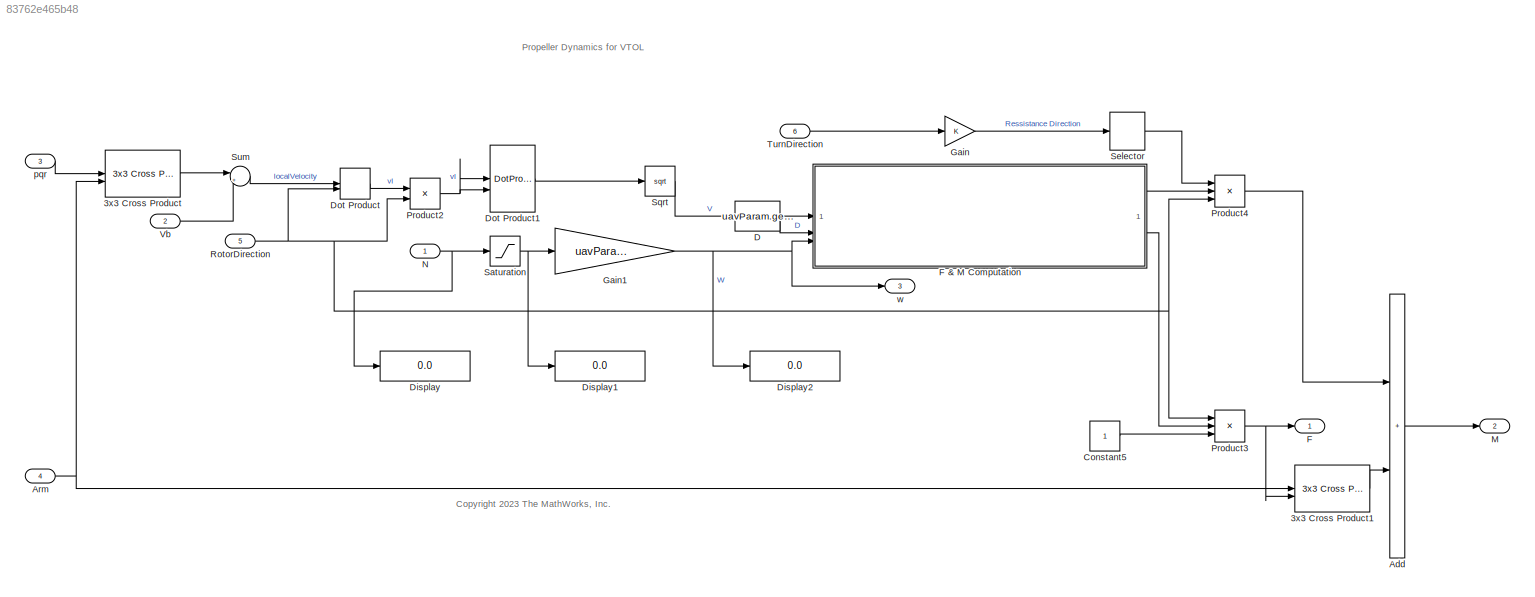
MODEL slx_83762e465b48
KIND model
BLOCK [Reference] 3x3 Cross Product  REF=sharedutil/3x3 Cross Product
  SourceBlock = sharedutil/3x3 Cross Product
  SourceType = CrossProduct
BLOCK [Reference] 3x3 Cross Product1  REF=sharedutil/3x3 Cross Product
  SourceBlock = sharedutil/3x3 Cross Product
  SourceType = CrossProduct
BLOCK [Sum] Add
  IconShape = rectangular
BLOCK [Inport] Arm
  Port = 4
  PortDimensions = [3 1]
BLOCK [Constant] Constant5
BLOCK [Constant] D
  Value = uavParam.geom.PropDiameter
BLOCK [Display] Display
  Decimation = 1
BLOCK [Display] Display1
  Decimation = 1
BLOCK [Display] Display2
  Decimation = 1
BLOCK [DotProduct] Dot Product
  OutDataTypeStr = Inherit: Inherit via internal rule
BLOCK [DotProduct] Dot Product1
  OutDataTypeStr = Inherit: Inherit via internal rule
BLOCK [Outport] F
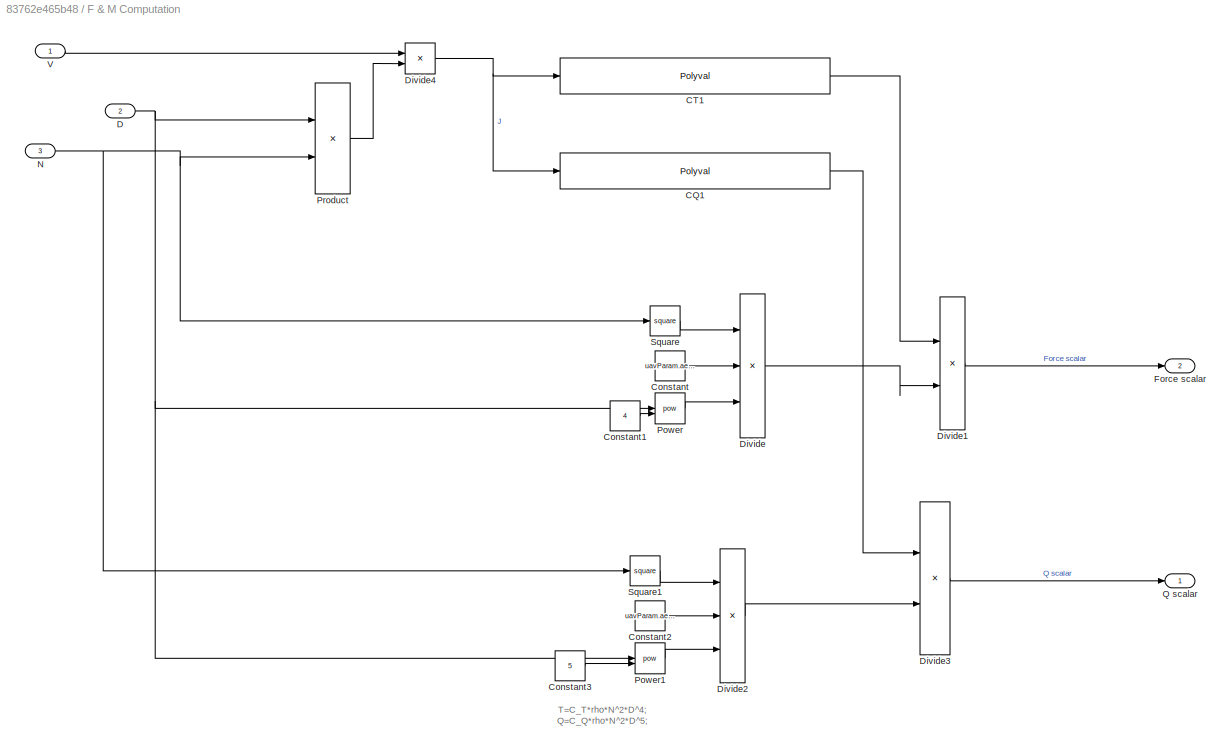
BLOCK [SubSystem] F & M Computation
BLOCK [Polyval] F & M Computation/CQ1
  Coefs = [0.04280,-0.05046,0.005711,-0.003293, 0.007048]
BLOCK [Polyval] F & M Computation/CT1
  Coefs = [0.03338, -0.1265,-0.1210,0.1142]
BLOCK [Constant] F & M Computation/Constant
  Value = uavParam.aero.rho
BLOCK [Constant] F & M Computation/Constant1
  Value = 4
BLOCK [Constant] F & M Computation/Constant2
  Value = uavParam.aero.rho
BLOCK [Constant] F & M Computation/Constant3
  Value = 5
BLOCK [Inport] F & M Computation/D
  Port = 2
BLOCK [Product] F & M Computation/Divide
  Inputs = ***
BLOCK [Product] F & M Computation/Divide1
  Inputs = **
BLOCK [Product] F & M Computation/Divide2
  Inputs = ***
BLOCK [Product] F & M Computation/Divide3
  Inputs = **
BLOCK [Product] F & M Computation/Divide4
  Inputs = */
BLOCK [Outport] F & M Computation/Force scalar
  Port = 2
BLOCK [Inport] F & M Computation/N
  Port = 3
BLOCK [Math] F & M Computation/Power
  Operator = pow
BLOCK [Math] F & M Computation/Power1
  Operator = pow
BLOCK [Product] F & M Computation/Product
BLOCK [Outport] F & M Computation/Q scalar
BLOCK [Math] F & M Computation/Square
  Operator = square
BLOCK [Math] F & M Computation/Square1
  Operator = square
BLOCK [Inport] F & M Computation/V
BLOCK [Gain] Gain
BLOCK [Gain] Gain1
  Gain = uavParam.motor.RPMMAX/60
BLOCK [Outport] M
  Port = 2
BLOCK [Inport] N
  OutDataTypeStr = double
  PortDimensions = 1
  SamplingMode = Sample based
  SignalType = real
BLOCK [Product] Product2
BLOCK [Product] Product3
  Inputs = 3
BLOCK [Product] Product4
  Inputs = 3
BLOCK [Inport] RotorDirection
  Port = 5
BLOCK [Saturate] Saturation
  LowerLimit = minPWM
  UpperLimit = 1
BLOCK [Selector] Selector
  IndexOptions = Index vector (dialog)
  Indices = 3
  InputPortWidth = 3
  OutputSizes = 1
BLOCK [Sqrt] Sqrt
BLOCK [Sum] Sum
  Inputs = |++
BLOCK [Inport] TurnDirection
  Port = 6
  PortDimensions = [3 1]
BLOCK [Inport] Vb
  Port = 2
  PortDimensions = 3
BLOCK [Inport] pqr
  Port = 3
  PortDimensions = 3
BLOCK [Outport] w
  Port = 3
ANNOTATION (root): <copyright redacted>
ANNOTATION (root): Propeller Dynamics for VTOL
ANNOTATION F & M Computation: T=C_T*rho*N^2*D^4; Q=C_Q*rho*N^2*D^5;
LINE 3x3 Cross Product1:1 -> Add:2
LINE 3x3 Cross Product:1 -> Sum:1
LINE Add:1 -> M:1
NET Arm:1 -> 3x3 Cross Product1:1, 3x3 Cross Product:2
LINE Constant5:1 -> Product3:3
LINE D:1 -> F & M Computation:2
LINE Dot Product1:1 -> Sqrt:1
LINE Dot Product:1 -> Product2:1
LINE F & M Computation/CQ1:1 -> F & M Computation/Divide3:1
LINE F & M Computation/CT1:1 -> F & M Computation/Divide1:1
LINE F & M Computation/Constant1:1 -> F & M Computation/Power:2
LINE F & M Computation/Constant2:1 -> F & M Computation/Divide2:2
LINE F & M Computation/Constant3:1 -> F & M Computation/Power1:2
LINE F & M Computation/Constant:1 -> F & M Computation/Divide:2
NET F & M Computation/D:1 -> F & M Computation/Power1:1, F & M Computation/Power:1, F & M Computation/Product:1
LINE F & M Computation/Divide1:1 -> F & M Computation/Force scalar:1
LINE F & M Computation/Divide2:1 -> F & M Computation/Divide3:2
LINE F & M Computation/Divide3:1 -> F & M Computation/Q scalar:1
NET F & M Computation/Divide4:1 -> F & M Computation/CQ1:1, F & M Computation/CT1:1
LINE F & M Computation/Divide:1 -> F & M Computation/Divide1:2
NET F & M Computation/N:1 -> F & M Computation/Product:2, F & M Computation/Square1:1, F & M Computation/Square:1
LINE F & M Computation/Power1:1 -> F & M Computation/Divide2:3
LINE F & M Computation/Power:1 -> F & M Computation/Divide:3
LINE F & M Computation/Product:1 -> F & M Computation/Divide4:2
LINE F & M Computation/Square1:1 -> F & M Computation/Divide2:1
LINE F & M Computation/Square:1 -> F & M Computation/Divide:1
LINE F & M Computation/V:1 -> F & M Computation/Divide4:1
LINE F & M Computation:1 -> Product4:2
LINE F & M Computation:2 -> Product3:2
NET Gain1:1 -> Display2:1, F & M Computation:3, w:1
LINE Gain:1 -> Selector:1
NET N:1 -> Display:1, Saturation:1
NET Product2:1 -> Dot Product1:1, Dot Product1:2
NET Product3:1 -> 3x3 Cross Product1:2, F:1
LINE Product4:1 -> Add:1
NET RotorDirection:1 -> Dot Product:2, Product2:2, Product3:1, Product4:3
NET Saturation:1 -> Display1:1, Gain1:1
LINE Selector:1 -> Product4:1
LINE Sqrt:1 -> F & M Computation:1
LINE Sum:1 -> Dot Product:1
LINE TurnDirection:1 -> Gain:1
LINE Vb:1 -> Sum:2
LINE pqr:1 -> 3x3 Cross Product:1
note: NET lines group one-source signal fan-out (src -> all destinations, sorted); 1:1 wires keep LINE
